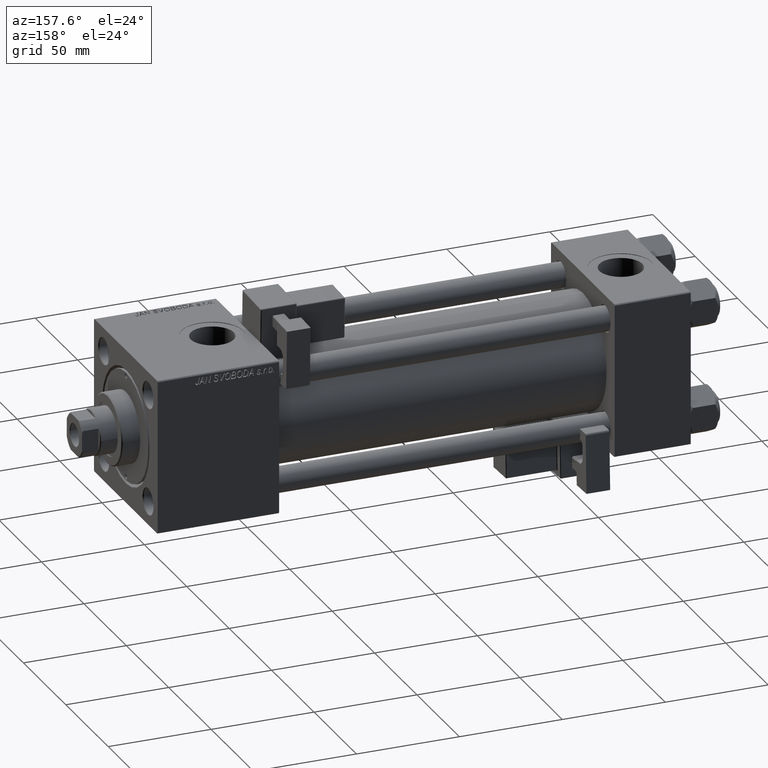
[diagram: clean part render]
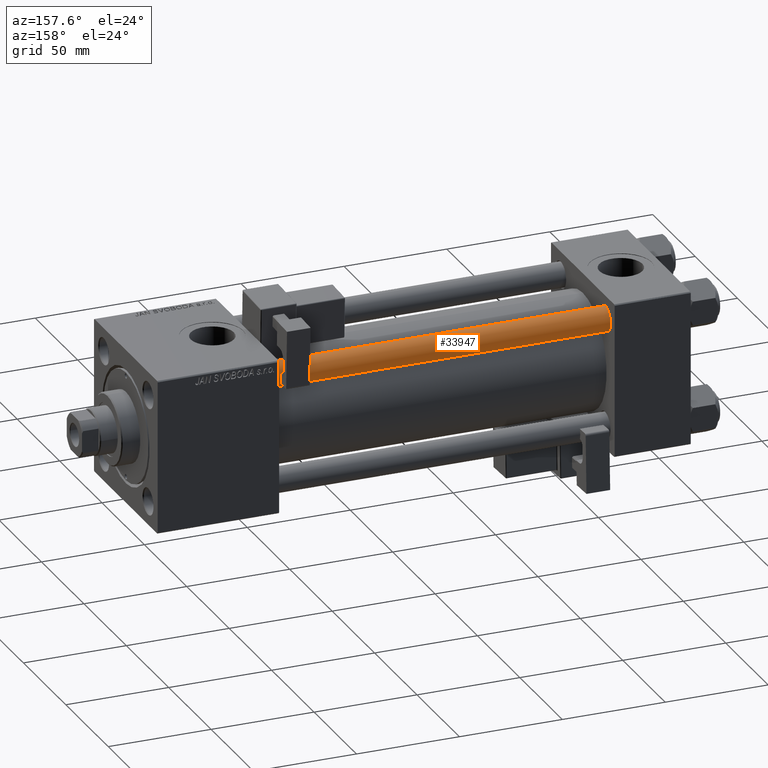
[diagram: same view with one face highlighted and labeled with its STEP entity id]
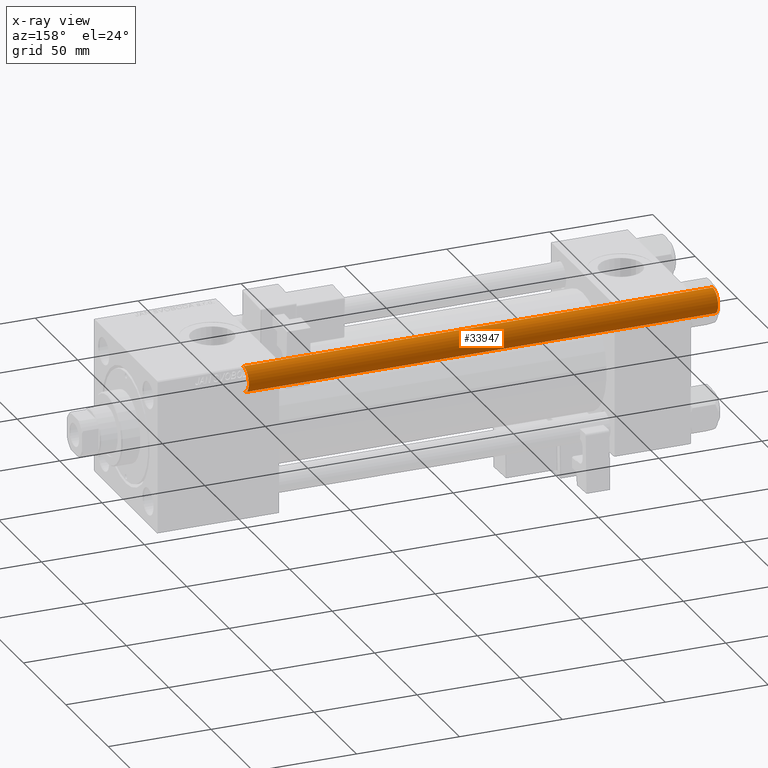
[diagram: x-ray of the same camera — body ghosted, the highlighted face saturated]
A machine part, auxiliary view. The second image highlights one B-rep face of the part: STEP entity #33947.
The next image is the same camera in x-ray: the body ghosted, the highlighted face saturated — about 0% of this face is hidden behind the body in this view.
In plain terms, the highlighted cylindrical surface (edge-blend (fillet) strip) has radius 6 mm, axis along (-1, 0, 0).
Its self-contained STEP definition (entity closure, byte-faithful):
#2803 = VECTOR ( 'NONE', #49053, 1000.000000000000000 ) ;
#3693 = CARTESIAN_POINT ( 'NONE',  ( -6.000000000000000888, 0.000000000000000000, 0.5000000000001392220 ) ) ;
#3833 = CYLINDRICAL_SURFACE ( 'NONE', #16466, 6.000000000000000888 ) ;
#8193 = ORIENTED_EDGE ( 'NONE', *, *, #19056, .T. ) ;
#10333 = EDGE_CURVE ( 'NONE', #27070, #42994, #19528, .T. ) ;
#11601 = LINE ( 'NONE', #51235, #17261 ) ;
#12121 = CARTESIAN_POINT ( 'NONE',  ( 6.000000000000000888, 7.347880794884119736E-16, 229.0000000000000000 ) ) ;
#16180 = CARTESIAN_POINT ( 'NONE',  ( 6.000000000000000888, 7.347880794884119736E-16, 0.5000000000001392220 ) ) ;
#16466 = AXIS2_PLACEMENT_3D ( 'NONE', #35993, #20041, #39203 ) ;
#17261 = VECTOR ( 'NONE', #23029, 1000.000000000000000 ) ;
#17721 = ORIENTED_EDGE ( 'NONE', *, *, #10333, .T. ) ;
#18547 = DIRECTION ( 'NONE',  ( -0.000000000000000000, -0.000000000000000000, 1.000000000000000000 ) ) ;
#19056 = EDGE_CURVE ( 'NONE', #42994, #48832, #40288, .T. ) ;
#19084 = ORIENTED_EDGE ( 'NONE', *, *, #32743, .F. ) ;
#19528 = CIRCLE ( 'NONE', #26329, 6.000000000000000888 ) ;
#20041 = DIRECTION ( 'NONE',  ( -0.000000000000000000, -0.000000000000000000, -1.000000000000000000 ) ) ;
#20229 = CIRCLE ( 'NONE', #49955, 6.000000000000000888 ) ;
#21171 = DIRECTION ( 'NONE',  ( 1.000000000000000000, 0.000000000000000000, 0.000000000000000000 ) ) ;
#21698 = CARTESIAN_POINT ( 'NONE',  ( 0.000000000000000000, 0.000000000000000000, 228.5000000000001137 ) ) ;
#23029 = DIRECTION ( 'NONE',  ( -0.000000000000000000, -0.000000000000000000, -1.000000000000000000 ) ) ;
#24294 = VERTEX_POINT ( 'NONE', #3693 ) ;
#26329 = AXIS2_PLACEMENT_3D ( 'NONE', #21698, #30475, #21171 ) ;
#27070 = VERTEX_POINT ( 'NONE', #46127 ) ;
#30475 = DIRECTION ( 'NONE',  ( 0.000000000000000000, 0.000000000000000000, -1.000000000000000000 ) ) ;
#32743 = EDGE_CURVE ( 'NONE', #27070, #24294, #11601, .T. ) ;
#33054 = EDGE_LOOP ( 'NONE', ( #17721, #8193, #38809, #19084 ) ) ;
#33947 = ADVANCED_FACE ( 'NONE', ( #43706 ), #3833, .T. ) ;
#34758 = DIRECTION ( 'NONE',  ( 1.000000000000000000, 0.000000000000000000, 0.000000000000000000 ) ) ;
#35993 = CARTESIAN_POINT ( 'NONE',  ( 0.000000000000000000, 0.000000000000000000, 229.0000000000000000 ) ) ;
#38750 = CARTESIAN_POINT ( 'NONE',  ( 0.000000000000000000, 0.000000000000000000, 0.5000000000001392220 ) ) ;
#38809 = ORIENTED_EDGE ( 'NONE', *, *, #49114, .T. ) ;
#39203 = DIRECTION ( 'NONE',  ( -1.000000000000000000, 0.000000000000000000, 0.000000000000000000 ) ) ;
#40288 = LINE ( 'NONE', #12121, #2803 ) ;
#42994 = VERTEX_POINT ( 'NONE', #46158 ) ;
#43706 = FACE_OUTER_BOUND ( 'NONE', #33054, .T. ) ;
#46127 = CARTESIAN_POINT ( 'NONE',  ( -6.000000000000000888, 0.000000000000000000, 228.5000000000001137 ) ) ;
#46158 = CARTESIAN_POINT ( 'NONE',  ( 6.000000000000000888, 7.347880794884119736E-16, 228.5000000000001137 ) ) ;
#48832 = VERTEX_POINT ( 'NONE', #16180 ) ;
#49053 = DIRECTION ( 'NONE',  ( -0.000000000000000000, -0.000000000000000000, -1.000000000000000000 ) ) ;
#49114 = EDGE_CURVE ( 'NONE', #48832, #24294, #20229, .T. ) ;
#49955 = AXIS2_PLACEMENT_3D ( 'NONE', #38750, #18547, #34758 ) ;
#51235 = CARTESIAN_POINT ( 'NONE',  ( -6.000000000000000888, 0.000000000000000000, 229.0000000000000000 ) ) ;